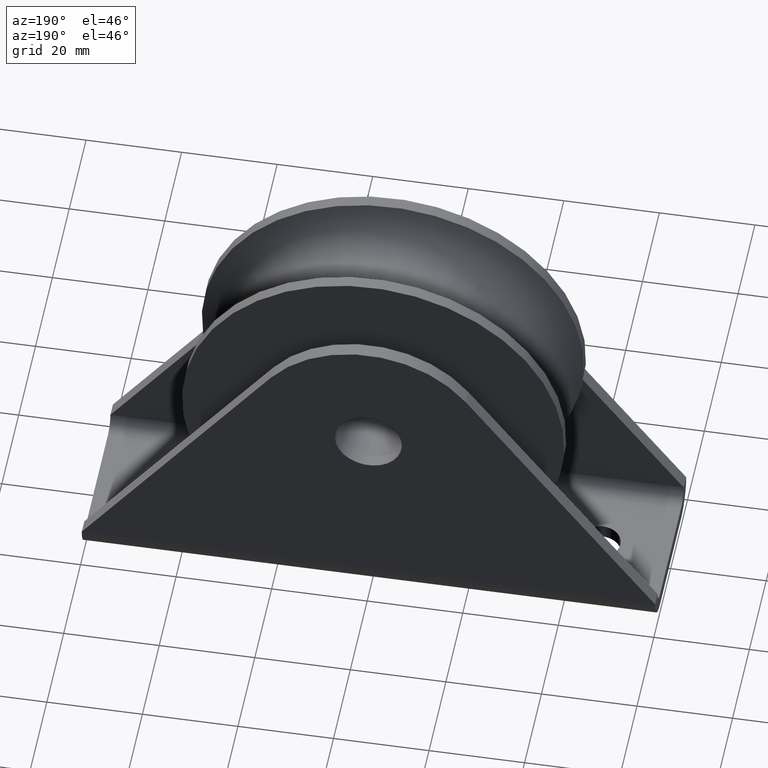
[diagram: clean part render]
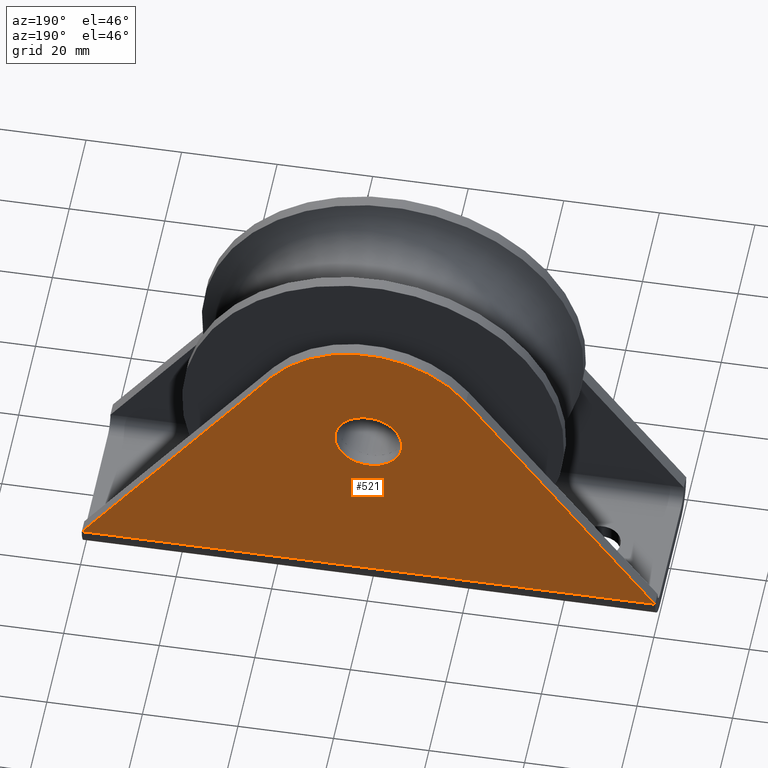
[diagram: same view with one face highlighted and labeled with its STEP entity id]
A machine part, auxiliary view. The second image highlights one B-rep face of the part: STEP entity #521.
In plain terms, the highlighted planar face has unit normal (0, -1, 0).
Its self-contained STEP definition (entity closure, byte-faithful):
#28=LINE('',#798,#60);
#34=LINE('',#811,#66);
#51=LINE('',#870,#83);
#60=VECTOR('',#626,66.);
#66=VECTOR('',#634,66.);
#83=VECTOR('',#703,120.);
#103=PLANE('',#580);
#119=FACE_BOUND('',#198,.T.);
#154=FACE_OUTER_BOUND('',#197,.T.);
#197=EDGE_LOOP('',(#437,#438,#439,#440));
#198=EDGE_LOOP('',(#441));
#232=CIRCLE('',#549,25.5);
#238=CIRCLE('',#561,7.);
#262=VERTEX_POINT('',#796);
#263=VERTEX_POINT('',#797);
#268=VERTEX_POINT('',#808);
#269=VERTEX_POINT('',#810);
#280=VERTEX_POINT('',#846);
#304=EDGE_CURVE('',#262,#263,#28,.T.);
#310=EDGE_CURVE('',#269,#268,#34,.T.);
#312=EDGE_CURVE('',#268,#262,#232,.T.);
#328=EDGE_CURVE('',#280,#280,#238,.T.);
#339=EDGE_CURVE('',#263,#269,#51,.T.);
#437=ORIENTED_EDGE('',*,*,#304,.T.);
#438=ORIENTED_EDGE('',*,*,#339,.T.);
#439=ORIENTED_EDGE('',*,*,#310,.T.);
#440=ORIENTED_EDGE('',*,*,#312,.T.);
#441=ORIENTED_EDGE('',*,*,#328,.T.);
#521=ADVANCED_FACE('',(#154,#119),#103,.F.);
#549=AXIS2_PLACEMENT_3D('',#814,#638,#639);
#561=AXIS2_PLACEMENT_3D('',#847,#672,#673);
#580=AXIS2_PLACEMENT_3D('',#884,#719,#720);
#626=DIRECTION('',(0.6,-5.32604184902594E-17,-0.8));
#634=DIRECTION('',(0.6,5.32604184902594E-17,0.8));
#638=DIRECTION('center_axis',(-4.50683757946983E-35,1.,-6.65755231128242E-17));
#639=DIRECTION('ref_axis',(1.,0.,3.00045069437739E-51));
#672=DIRECTION('center_axis',(4.50683757946983E-35,-1.,6.65755231128242E-17));
#673=DIRECTION('ref_axis',(1.,4.50683757946983E-35,3.00045069437739E-51));
#703=DIRECTION('',(-1.,-4.50683757946983E-35,2.75964210798737E-51));
#719=DIRECTION('center_axis',(4.50683757946983E-35,-1.,6.65755231128242E-17));
#720=DIRECTION('ref_axis',(1.,0.,0.));
#796=CARTESIAN_POINT('',(20.4,18.5,58.8));
#797=CARTESIAN_POINT('',(60.,18.5,6.));
#798=CARTESIAN_POINT('',(42.4543008158105,18.5,29.3942655789194));
#808=CARTESIAN_POINT('',(-20.4,18.5,58.8));
#810=CARTESIAN_POINT('',(-60.,18.5,6.));
#811=CARTESIAN_POINT('',(-22.6543008158105,18.5,55.7942655789194));
#814=CARTESIAN_POINT('Origin',(0.,18.5,43.5));
#846=CARTESIAN_POINT('',(-7.,18.5,43.5));
#847=CARTESIAN_POINT('Origin',(-1.66752990440384E-33,18.5,43.5));
#870=CARTESIAN_POINT('',(-3.78574356675466E-35,18.5,6.));
#884=CARTESIAN_POINT('Origin',(0.,18.5,34.107079934123));